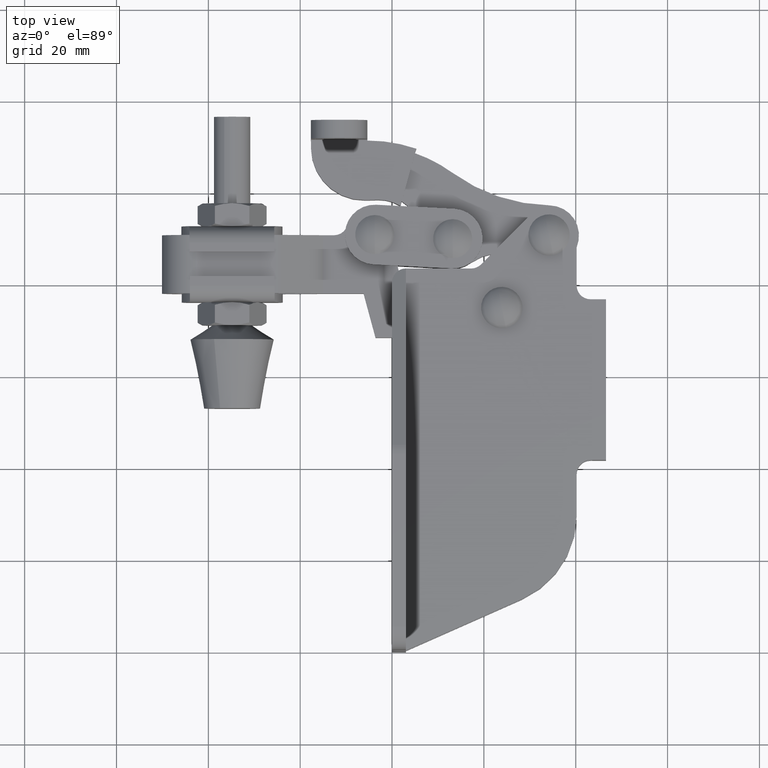
[diagram: clean part render]
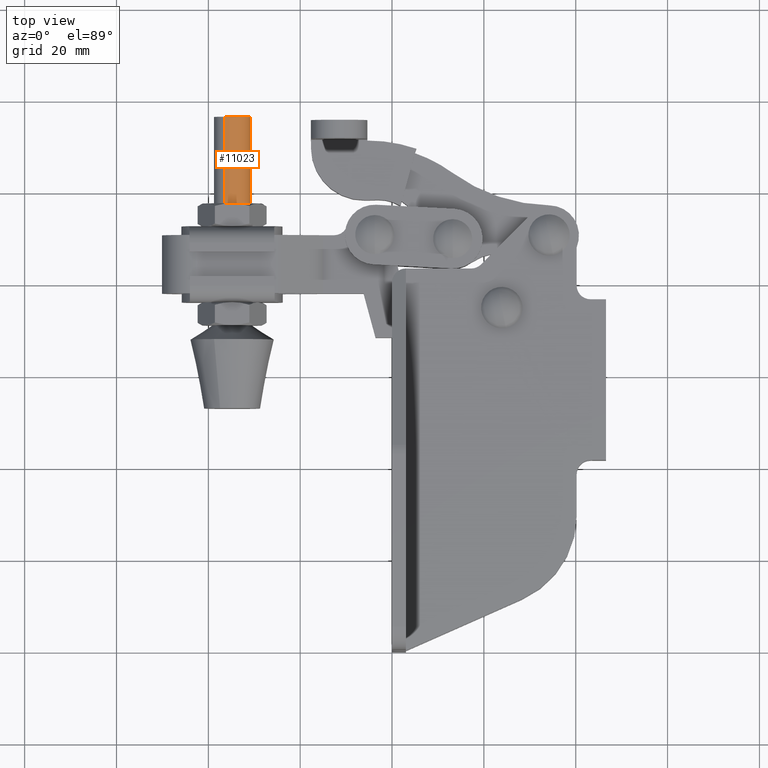
[diagram: same view with one face highlighted and labeled with its STEP entity id]
A machine part, top view. The second image highlights one B-rep face of the part: STEP entity #11023.
In plain terms, the highlighted cylindrical surface (edge-blend (fillet) strip) has radius 3.965 mm, axis along (0, -1, -0).
Its self-contained STEP definition (entity closure, byte-faithful):
#310 = CARTESIAN_POINT ( 'NONE',  ( -33.11912657065452200, 97.41999999999993100, -6.579441006488709200 ) ) ;
#340 = DIRECTION ( 'NONE',  ( 6.844972190226000900E-017, -1.000000000000000000, -1.521337052038029000E-016 ) ) ;
#805 = CARTESIAN_POINT ( 'NONE',  ( -34.82465495830070500, 52.80000000000000400, -2.999999999999991100 ) ) ;
#1049 = FACE_OUTER_BOUND ( 'NONE', #5154, .T. ) ;
#1152 = DIRECTION ( 'NONE',  ( -9.436895709313832600E-016, -1.000000000000000000, 2.853620117981851100E-016 ) ) ;
#1383 = CIRCLE ( 'NONE', #2645, 3.965000000000003400 ) ;
#2492 = ORIENTED_EDGE ( 'NONE', *, *, #3636, .F. ) ;
#2645 = AXIS2_PLACEMENT_3D ( 'NONE', #8302, #1152, #9476 ) ;
#2717 = CARTESIAN_POINT ( 'NONE',  ( -33.11912657065452200, 116.3000000000000100, -6.579441006488702100 ) ) ;
#2798 = VERTEX_POINT ( 'NONE', #7544 ) ;
#3636 = EDGE_CURVE ( 'NONE', #8680, #5485, #1383, .T. ) ;
#4348 = DIRECTION ( 'NONE',  ( 6.844972190226000900E-017, -1.000000000000000000, -1.521337052038029000E-016 ) ) ;
#4572 = ORIENTED_EDGE ( 'NONE', *, *, #5420, .T. ) ;
#5142 = EDGE_CURVE ( 'NONE', #11946, #8680, #13924, .T. ) ;
#5154 = EDGE_LOOP ( 'NONE', ( #9532, #4572, #2492, #10695 ) ) ;
#5327 = EDGE_CURVE ( 'NONE', #11946, #2798, #5412, .T. ) ;
#5412 = CIRCLE ( 'NONE', #8257, 3.964999999999996300 ) ;
#5420 = EDGE_CURVE ( 'NONE', #2798, #5485, #14103, .T. ) ;
#5485 = VERTEX_POINT ( 'NONE', #7162 ) ;
#5516 = DIRECTION ( 'NONE',  ( 6.844972190226000900E-017, -1.000000000000000000, -1.521337052038029000E-016 ) ) ;
#7083 = VECTOR ( 'NONE', #10595, 1000.000000000000000 ) ;
#7162 = CARTESIAN_POINT ( 'NONE',  ( -36.53018334594690200, 97.41999999999993100, 0.5794410064887366400 ) ) ;
#7544 = CARTESIAN_POINT ( 'NONE',  ( -36.53018334594690200, 116.3000000000000100, 0.5794410064887323100 ) ) ;
#8257 = AXIS2_PLACEMENT_3D ( 'NONE', #12604, #5516, #13770 ) ;
#8302 = CARTESIAN_POINT ( 'NONE',  ( -34.82465495830070500, 97.41999999999993100, -2.999999999999984000 ) ) ;
#8680 = VERTEX_POINT ( 'NONE', #310 ) ;
#9064 = CYLINDRICAL_SURFACE ( 'NONE', #14043, 3.965000000000000700 ) ;
#9132 = DIRECTION ( 'NONE',  ( 0.4301458733029484600, 0.0000000000000000000, -0.9027593963401565600 ) ) ;
#9476 = DIRECTION ( 'NONE',  ( 1.000000000000000000, 0.0000000000000000000, 0.0000000000000000000 ) ) ;
#9532 = ORIENTED_EDGE ( 'NONE', *, *, #5327, .T. ) ;
#9812 = CARTESIAN_POINT ( 'NONE',  ( -33.11912657065451500, 52.80000000000000400, -6.579441006488712800 ) ) ;
#10595 = DIRECTION ( 'NONE',  ( 6.844972190226000900E-017, -1.000000000000000000, -1.521337052038029000E-016 ) ) ;
#10695 = ORIENTED_EDGE ( 'NONE', *, *, #5142, .F. ) ;
#10802 = VECTOR ( 'NONE', #340, 1000.000000000000000 ) ;
#11023 = ADVANCED_FACE ( 'NONE', ( #1049 ), #9064, .T. ) ;
#11794 = CARTESIAN_POINT ( 'NONE',  ( -36.53018334594689500, 52.80000000000000400, 0.5794410064887305400 ) ) ;
#11946 = VERTEX_POINT ( 'NONE', #2717 ) ;
#12604 = CARTESIAN_POINT ( 'NONE',  ( -34.82465495830070500, 116.3000000000000100, -2.999999999999981300 ) ) ;
#13770 = DIRECTION ( 'NONE',  ( 0.0000000000000000000, 0.0000000000000000000, -1.000000000000000000 ) ) ;
#13924 = LINE ( 'NONE', #9812, #10802 ) ;
#14043 = AXIS2_PLACEMENT_3D ( 'NONE', #805, #4348, #9132 ) ;
#14103 = LINE ( 'NONE', #11794, #7083 ) ;